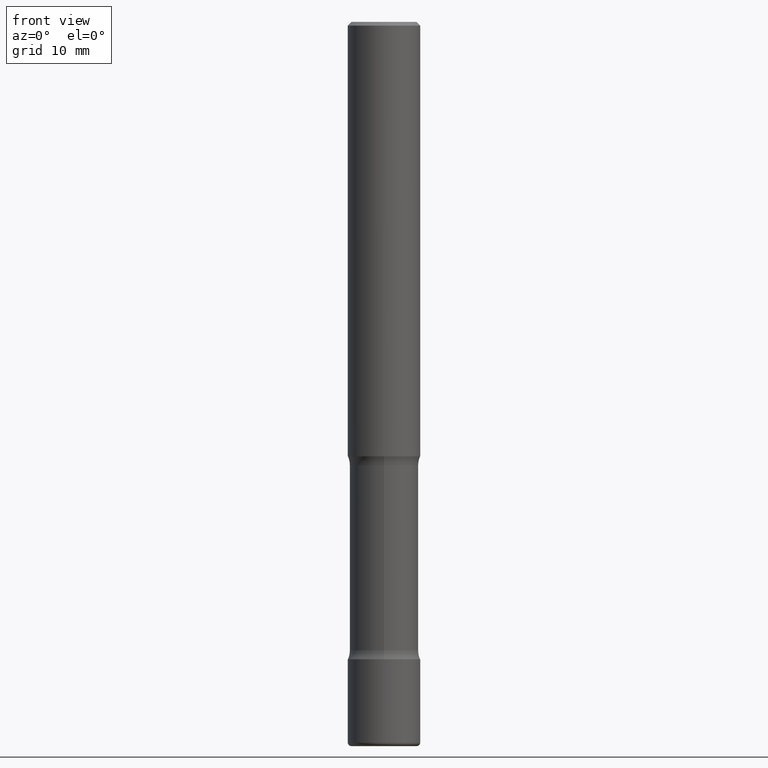
[diagram: clean part render]
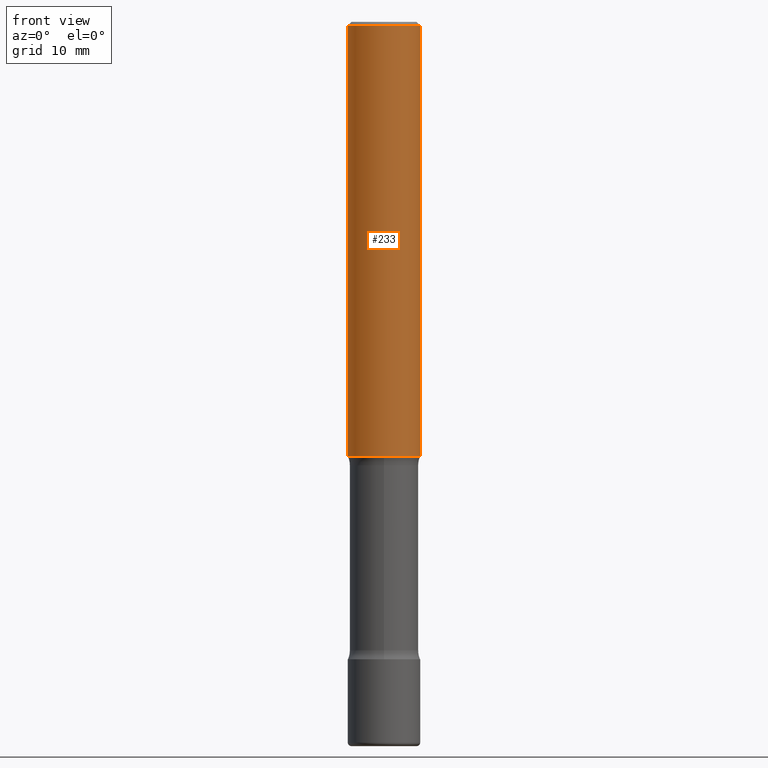
[diagram: same view with one face highlighted and labeled with its STEP entity id]
A machine part, front view. The second image highlights one B-rep face of the part: STEP entity #233.
In plain terms, the highlighted cylindrical surface (edge-blend (fillet) strip) has radius 5 mm, axis along (-0, 0, 1).
Its self-contained STEP definition (entity closure, byte-faithful):
#26 = CIRCLE ( 'NONE', #140, 0.1968499999999999139 ) ;
#32 = CARTESIAN_POINT ( 'NONE',  ( 4.890937612370289799E-31, -6.982962677686315028E-17, -0.02000000000000006981 ) ) ;
#39 = DIRECTION ( 'NONE',  ( -2.445468806185136597E-29, 3.491481338843145583E-15, 1.000000000000000000 ) ) ;
#56 = ORIENTED_EDGE ( 'NONE', *, *, #367, .T. ) ;
#57 = LINE ( 'NONE', #59, #254 ) ;
#59 = CARTESIAN_POINT ( 'NONE',  ( -0.1968500000000000250, 1.398703375343757393E-15, -9.682923725166783677E-30 ) ) ;
#66 = DIRECTION ( 'NONE',  ( -2.445468806185136877E-29, 3.491481338843145188E-15, 1.000000000000000000 ) ) ;
#75 = EDGE_CURVE ( 'NONE', #496, #92, #345, .T. ) ;
#82 = CARTESIAN_POINT ( 'NONE',  ( 0.000000000000000000, 0.000000000000000000, 0.000000000000000000 ) ) ;
#92 = VERTEX_POINT ( 'NONE', #551 ) ;
#108 = CARTESIAN_POINT ( 'NONE',  ( 0.1968500000000000250, -1.374596203102541608E-15, 9.598753983154300858E-30 ) ) ;
#113 = ORIENTED_EDGE ( 'NONE', *, *, #203, .F. ) ;
#117 = AXIS2_PLACEMENT_3D ( 'NONE', #82, #39, #475 ) ;
#131 = VERTEX_POINT ( 'NONE', #466 ) ;
#132 = FACE_OUTER_BOUND ( 'NONE', #363, .T. ) ;
#140 = AXIS2_PLACEMENT_3D ( 'NONE', #32, #379, #339 ) ;
#161 = CARTESIAN_POINT ( 'NONE',  ( 5.776686413970530874E-29, -8.247577218615281204E-15, -2.362200000000000966 ) ) ;
#169 = ORIENTED_EDGE ( 'NONE', *, *, #464, .F. ) ;
#179 = ORIENTED_EDGE ( 'NONE', *, *, #75, .T. ) ;
#203 = EDGE_CURVE ( 'NONE', #131, #535, #26, .T. ) ;
#233 = ADVANCED_FACE ( 'NONE', ( #132 ), #259, .T. ) ;
#253 = AXIS2_PLACEMENT_3D ( 'NONE', #161, #296, #555 ) ;
#254 = VECTOR ( 'NONE', #66, 39.37007874015748143 ) ;
#259 = CYLINDRICAL_SURFACE ( 'NONE', #117, 0.1968500000000000250 ) ;
#296 = DIRECTION ( 'NONE',  ( -2.445468806185136597E-29, 3.491481338843145583E-15, 1.000000000000000000 ) ) ;
#339 = DIRECTION ( 'NONE',  ( 1.000000000000000000, -6.982962677686266711E-15, 0.000000000000000000 ) ) ;
#345 = CIRCLE ( 'NONE', #253, 0.1968500000000001082 ) ;
#363 = EDGE_LOOP ( 'NONE', ( #169, #179, #56, #113 ) ) ;
#367 = EDGE_CURVE ( 'NONE', #92, #535, #473, .T. ) ;
#379 = DIRECTION ( 'NONE',  ( -2.445468806185136597E-29, 3.491481338843145583E-15, 1.000000000000000000 ) ) ;
#403 = CARTESIAN_POINT ( 'NONE',  ( -0.1968500000000001082, -2.760000047352312097E-15, -2.362200000000000966 ) ) ;
#464 = EDGE_CURVE ( 'NONE', #496, #131, #57, .T. ) ;
#465 = CARTESIAN_POINT ( 'NONE',  ( 0.1968499999999999139, -1.420318657638188530E-15, -0.02000000000000006981 ) ) ;
#466 = CARTESIAN_POINT ( 'NONE',  ( -0.1968499999999999139, 1.304766576325677916E-15, -0.02000000000000006981 ) ) ;
#473 = LINE ( 'NONE', #108, #549 ) ;
#475 = DIRECTION ( 'NONE',  ( 1.000000000000000000, -6.982962677686265922E-15, 4.876176775795935793E-29 ) ) ;
#496 = VERTEX_POINT ( 'NONE', #403 ) ;
#535 = VERTEX_POINT ( 'NONE', #465 ) ;
#538 = DIRECTION ( 'NONE',  ( -2.445468806185136877E-29, 3.491481338843145188E-15, 1.000000000000000000 ) ) ;
#549 = VECTOR ( 'NONE', #538, 39.37007874015748143 ) ;
#551 = CARTESIAN_POINT ( 'NONE',  ( 0.1968500000000001082, -9.622173421717824390E-15, -2.362200000000000966 ) ) ;
#555 = DIRECTION ( 'NONE',  ( 1.000000000000000000, -6.982962677686269866E-15, 0.000000000000000000 ) ) ;